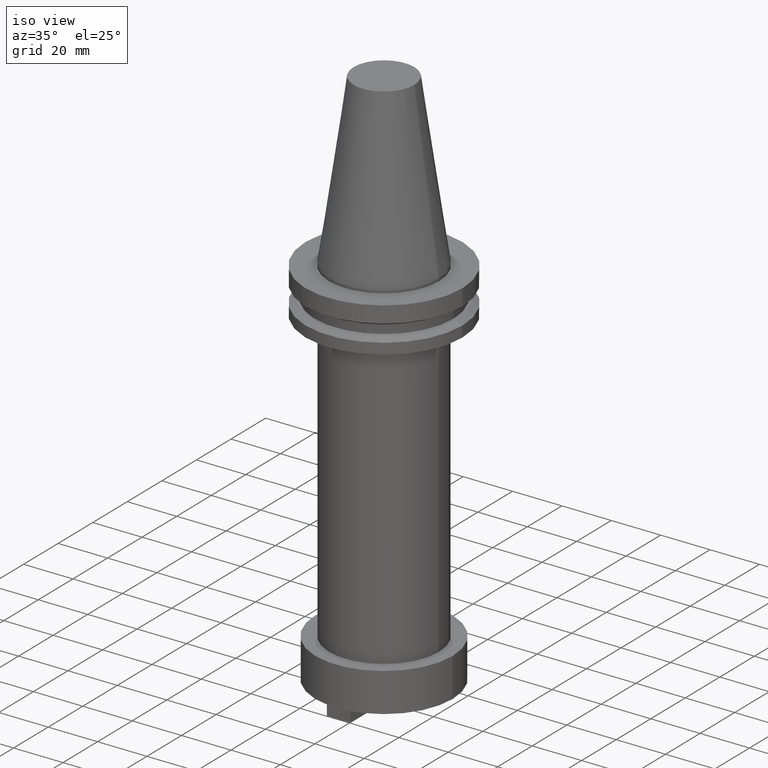
[diagram: clean part render]
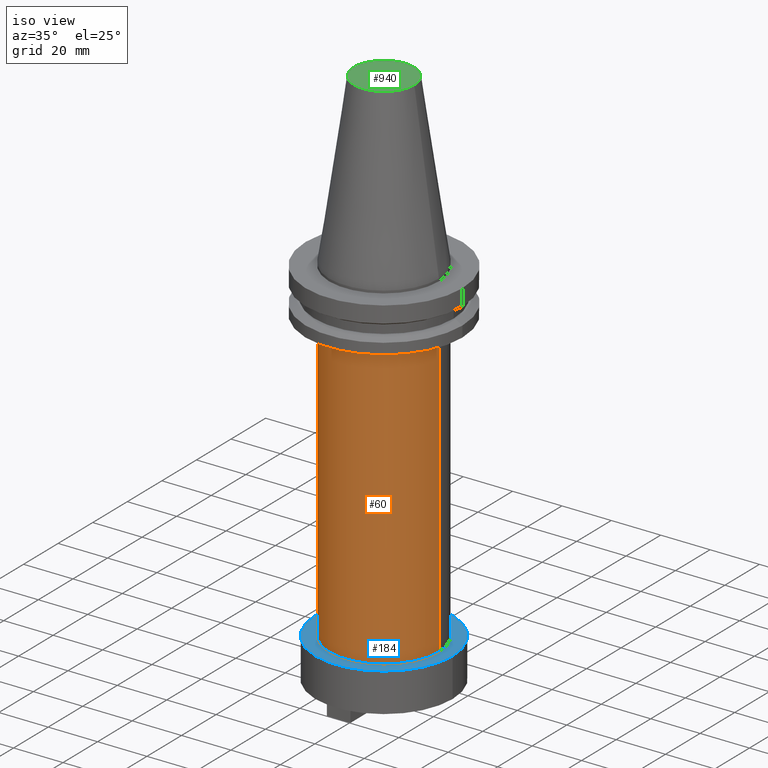
[diagram: same view with three faces highlighted in distinct colors, each labeled with its STEP entity id]
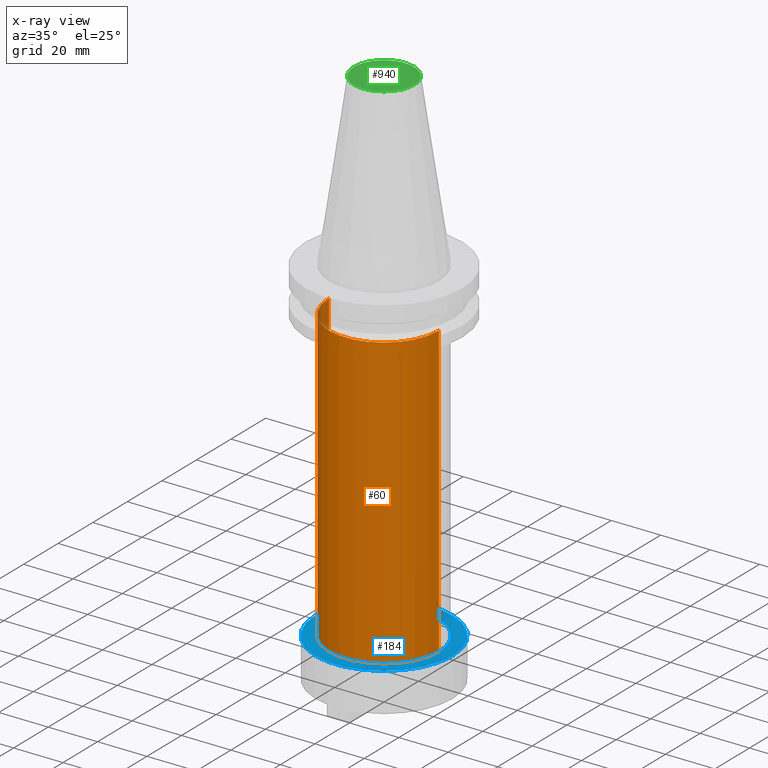
[diagram: x-ray of the same camera — body ghosted, the three highlighted faces saturated]
A machine part, iso view with three faces highlighted in distinct colors.
The next image is the same camera in x-ray (body ghosted, the three faces saturated) — at least one of them is partly hidden behind the body in this view.
Their STEP definitions:

[orange] entity #60 — the highlighted cylindrical surface (partial cylindrical patch) has radius 22.225 mm, axis along (-0, -0, 1).
#16 = DIRECTION ( 'NONE',  ( -0.000000000000000000, -0.000000000000000000, 1.000000000000000000 ) ) ;
#60 = ADVANCED_FACE ( 'NONE', ( #252 ), #595, .T. ) ;
#78 = VERTEX_POINT ( 'NONE', #347 ) ;
#84 = DIRECTION ( 'NONE',  ( -0.000000000000000000, -0.000000000000000000, 1.000000000000000000 ) ) ;
#150 = ORIENTED_EDGE ( 'NONE', *, *, #601, .T. ) ;
#154 = CIRCLE ( 'NONE', #294, 22.22500000000000142 ) ;
#157 = VECTOR ( 'NONE', #470, 1000.000000000000000 ) ;
#159 = VERTEX_POINT ( 'NONE', #606 ) ;
#208 = ORIENTED_EDGE ( 'NONE', *, *, #326, .F. ) ;
#221 = AXIS2_PLACEMENT_3D ( 'NONE', #487, #84, #234 ) ;
#230 = VERTEX_POINT ( 'NONE', #370 ) ;
#234 = DIRECTION ( 'NONE',  ( 1.000000000000000000, 0.000000000000000000, 0.000000000000000000 ) ) ;
#252 = FACE_OUTER_BOUND ( 'NONE', #385, .T. ) ;
#266 = CARTESIAN_POINT ( 'NONE',  ( 0.000000000000000000, 0.000000000000000000, -19.04999999999999716 ) ) ;
#294 = AXIS2_PLACEMENT_3D ( 'NONE', #678, #506, #340 ) ;
#326 = EDGE_CURVE ( 'NONE', #667, #230, #1067, .T. ) ;
#331 = ORIENTED_EDGE ( 'NONE', *, *, #875, .T. ) ;
#340 = DIRECTION ( 'NONE',  ( 1.000000000000000000, 0.000000000000000000, 0.000000000000000000 ) ) ;
#347 = CARTESIAN_POINT ( 'NONE',  ( 22.22500000000000142, 0.000000000000000000, -19.04999999999999716 ) ) ;
#370 = CARTESIAN_POINT ( 'NONE',  ( -22.22500000000000142, 2.721777511104992849E-15, -19.04999999999999716 ) ) ;
#385 = EDGE_LOOP ( 'NONE', ( #208, #150, #331, #413 ) ) ;
#413 = ORIENTED_EDGE ( 'NONE', *, *, #715, .F. ) ;
#470 = DIRECTION ( 'NONE',  ( -0.000000000000000000, -0.000000000000000000, 1.000000000000000000 ) ) ;
#487 = CARTESIAN_POINT ( 'NONE',  ( 0.000000000000000000, 0.000000000000000000, 68.25000000000000000 ) ) ;
#488 = CARTESIAN_POINT ( 'NONE',  ( 22.22500000000000142, 0.000000000000000000, 68.25000000000000000 ) ) ;
#506 = DIRECTION ( 'NONE',  ( -0.000000000000000000, -0.000000000000000000, 1.000000000000000000 ) ) ;
#526 = CIRCLE ( 'NONE', #944, 22.22500000000000142 ) ;
#595 = CYLINDRICAL_SURFACE ( 'NONE', #221, 22.22500000000000142 ) ;
#601 = EDGE_CURVE ( 'NONE', #667, #159, #154, .T. ) ;
#606 = CARTESIAN_POINT ( 'NONE',  ( 22.22500000000000142, 0.000000000000000000, -136.6500000000000057 ) ) ;
#640 = DIRECTION ( 'NONE',  ( -0.000000000000000000, -0.000000000000000000, 1.000000000000000000 ) ) ;
#666 = CARTESIAN_POINT ( 'NONE',  ( -22.22500000000000142, 2.721777511104992849E-15, 68.25000000000000000 ) ) ;
#667 = VERTEX_POINT ( 'NONE', #795 ) ;
#678 = CARTESIAN_POINT ( 'NONE',  ( 0.000000000000000000, 0.000000000000000000, -136.6500000000000057 ) ) ;
#715 = EDGE_CURVE ( 'NONE', #230, #78, #526, .T. ) ;
#718 = LINE ( 'NONE', #488, #157 ) ;
#778 = VECTOR ( 'NONE', #640, 1000.000000000000000 ) ;
#795 = CARTESIAN_POINT ( 'NONE',  ( -22.22500000000000142, 2.721777511104992849E-15, -136.6500000000000057 ) ) ;
#875 = EDGE_CURVE ( 'NONE', #159, #78, #718, .T. ) ;
#944 = AXIS2_PLACEMENT_3D ( 'NONE', #266, #16, #945 ) ;
#945 = DIRECTION ( 'NONE',  ( 1.000000000000000000, 0.000000000000000000, 0.000000000000000000 ) ) ;
#1067 = LINE ( 'NONE', #666, #778 ) ;

[blue] entity #184 — the highlighted planar face has unit normal (0, 0, -1).
#6 = VERTEX_POINT ( 'NONE', #564 ) ;
#23 = DIRECTION ( 'NONE',  ( -0.000000000000000000, -0.000000000000000000, 1.000000000000000000 ) ) ;
#33 = DIRECTION ( 'NONE',  ( -1.000000000000000000, 0.000000000000000000, -0.000000000000000000 ) ) ;
#40 = CARTESIAN_POINT ( 'NONE',  ( 0.000000000000000000, 22.22500000000000142, -136.6500000000000057 ) ) ;
#49 = EDGE_LOOP ( 'NONE', ( #559, #585 ) ) ;
#75 = VERTEX_POINT ( 'NONE', #436 ) ;
#109 = AXIS2_PLACEMENT_3D ( 'NONE', #40, #453, #33 ) ;
#116 = ORIENTED_EDGE ( 'NONE', *, *, #438, .F. ) ;
#142 = EDGE_CURVE ( 'NONE', #75, #6, #360, .T. ) ;
#154 = CIRCLE ( 'NONE', #294, 22.22500000000000142 ) ;
#159 = VERTEX_POINT ( 'NONE', #606 ) ;
#184 = ADVANCED_FACE ( 'NONE', ( #544, #462 ), #959, .F. ) ;
#190 = CIRCLE ( 'NONE', #346, 22.22500000000000142 ) ;
#222 = EDGE_LOOP ( 'NONE', ( #116, #451 ) ) ;
#240 = DIRECTION ( 'NONE',  ( -0.000000000000000000, -0.000000000000000000, 1.000000000000000000 ) ) ;
#243 = CIRCLE ( 'NONE', #964, 27.80000000000000426 ) ;
#264 = DIRECTION ( 'NONE',  ( -0.000000000000000000, -0.000000000000000000, 1.000000000000000000 ) ) ;
#294 = AXIS2_PLACEMENT_3D ( 'NONE', #678, #506, #340 ) ;
#340 = DIRECTION ( 'NONE',  ( 1.000000000000000000, 0.000000000000000000, 0.000000000000000000 ) ) ;
#346 = AXIS2_PLACEMENT_3D ( 'NONE', #645, #240, #568 ) ;
#360 = CIRCLE ( 'NONE', #978, 27.80000000000000426 ) ;
#436 = CARTESIAN_POINT ( 'NONE',  ( 27.80000000000000426, 0.000000000000000000, -136.6500000000000057 ) ) ;
#438 = EDGE_CURVE ( 'NONE', #159, #667, #190, .T. ) ;
#451 = ORIENTED_EDGE ( 'NONE', *, *, #601, .F. ) ;
#453 = DIRECTION ( 'NONE',  ( 0.000000000000000000, 0.000000000000000000, -1.000000000000000000 ) ) ;
#462 = FACE_OUTER_BOUND ( 'NONE', #49, .T. ) ;
#506 = DIRECTION ( 'NONE',  ( -0.000000000000000000, -0.000000000000000000, 1.000000000000000000 ) ) ;
#508 = DIRECTION ( 'NONE',  ( 1.000000000000000000, 0.000000000000000000, 0.000000000000000000 ) ) ;
#544 = FACE_BOUND ( 'NONE', #222, .T. ) ;
#559 = ORIENTED_EDGE ( 'NONE', *, *, #142, .T. ) ;
#564 = CARTESIAN_POINT ( 'NONE',  ( -27.80000000000000426, 3.404518101629642562E-15, -136.6500000000000057 ) ) ;
#568 = DIRECTION ( 'NONE',  ( 1.000000000000000000, 0.000000000000000000, 0.000000000000000000 ) ) ;
#585 = ORIENTED_EDGE ( 'NONE', *, *, #661, .T. ) ;
#601 = EDGE_CURVE ( 'NONE', #667, #159, #154, .T. ) ;
#606 = CARTESIAN_POINT ( 'NONE',  ( 22.22500000000000142, 0.000000000000000000, -136.6500000000000057 ) ) ;
#645 = CARTESIAN_POINT ( 'NONE',  ( 0.000000000000000000, 0.000000000000000000, -136.6500000000000057 ) ) ;
#661 = EDGE_CURVE ( 'NONE', #6, #75, #243, .T. ) ;
#667 = VERTEX_POINT ( 'NONE', #795 ) ;
#678 = CARTESIAN_POINT ( 'NONE',  ( 0.000000000000000000, 0.000000000000000000, -136.6500000000000057 ) ) ;
#686 = CARTESIAN_POINT ( 'NONE',  ( 0.000000000000000000, 0.000000000000000000, -136.6500000000000057 ) ) ;
#795 = CARTESIAN_POINT ( 'NONE',  ( -22.22500000000000142, 2.721777511104992849E-15, -136.6500000000000057 ) ) ;
#959 = PLANE ( 'NONE',  #109 ) ;
#964 = AXIS2_PLACEMENT_3D ( 'NONE', #1022, #23, #1045 ) ;
#978 = AXIS2_PLACEMENT_3D ( 'NONE', #686, #264, #508 ) ;
#1022 = CARTESIAN_POINT ( 'NONE',  ( 0.000000000000000000, 0.000000000000000000, -136.6500000000000057 ) ) ;
#1045 = DIRECTION ( 'NONE',  ( 1.000000000000000000, 0.000000000000000000, 0.000000000000000000 ) ) ;

[green] entity #940 — the highlighted planar face has unit normal (0, 0, -1).
#10 = AXIS2_PLACEMENT_3D ( 'NONE', #611, #628, #867 ) ;
#14 = CARTESIAN_POINT ( 'NONE',  ( 12.27178102086201150, 2.112318622904291439E-15, 68.25000000000000000 ) ) ;
#35 = VERTEX_POINT ( 'NONE', #163 ) ;
#93 = DIRECTION ( 'NONE',  ( 0.000000000000000000, 0.000000000000000000, -1.000000000000000000 ) ) ;
#97 = AXIS2_PLACEMENT_3D ( 'NONE', #838, #587, #583 ) ;
#163 = CARTESIAN_POINT ( 'NONE',  ( -12.27178102086201150, 0.000000000000000000, 68.25000000000000000 ) ) ;
#205 = AXIS2_PLACEMENT_3D ( 'NONE', #797, #93, #1024 ) ;
#302 = VERTEX_POINT ( 'NONE', #14 ) ;
#359 = PLANE ( 'NONE',  #205 ) ;
#531 = ORIENTED_EDGE ( 'NONE', *, *, #1001, .T. ) ;
#540 = EDGE_CURVE ( 'NONE', #35, #302, #789, .T. ) ;
#583 = DIRECTION ( 'NONE',  ( 1.000000000000000000, 0.000000000000000000, 0.000000000000000000 ) ) ;
#587 = DIRECTION ( 'NONE',  ( -0.000000000000000000, -0.000000000000000000, 1.000000000000000000 ) ) ;
#611 = CARTESIAN_POINT ( 'NONE',  ( 0.000000000000000000, 0.000000000000000000, 68.25000000000000000 ) ) ;
#628 = DIRECTION ( 'NONE',  ( -0.000000000000000000, -0.000000000000000000, 1.000000000000000000 ) ) ;
#683 = CIRCLE ( 'NONE', #10, 12.27178102086201150 ) ;
#773 = EDGE_LOOP ( 'NONE', ( #941, #531 ) ) ;
#774 = FACE_OUTER_BOUND ( 'NONE', #773, .T. ) ;
#789 = CIRCLE ( 'NONE', #97, 12.27178102086201150 ) ;
#797 = CARTESIAN_POINT ( 'NONE',  ( 0.000000000000000000, 12.27178102086201150, 68.25000000000000000 ) ) ;
#838 = CARTESIAN_POINT ( 'NONE',  ( 0.000000000000000000, 0.000000000000000000, 68.25000000000000000 ) ) ;
#867 = DIRECTION ( 'NONE',  ( 1.000000000000000000, 0.000000000000000000, 0.000000000000000000 ) ) ;
#940 = ADVANCED_FACE ( 'NONE', ( #774 ), #359, .F. ) ;
#941 = ORIENTED_EDGE ( 'NONE', *, *, #540, .T. ) ;
#1001 = EDGE_CURVE ( 'NONE', #302, #35, #683, .T. ) ;
#1024 = DIRECTION ( 'NONE',  ( -1.000000000000000000, 0.000000000000000000, -0.000000000000000000 ) ) ;